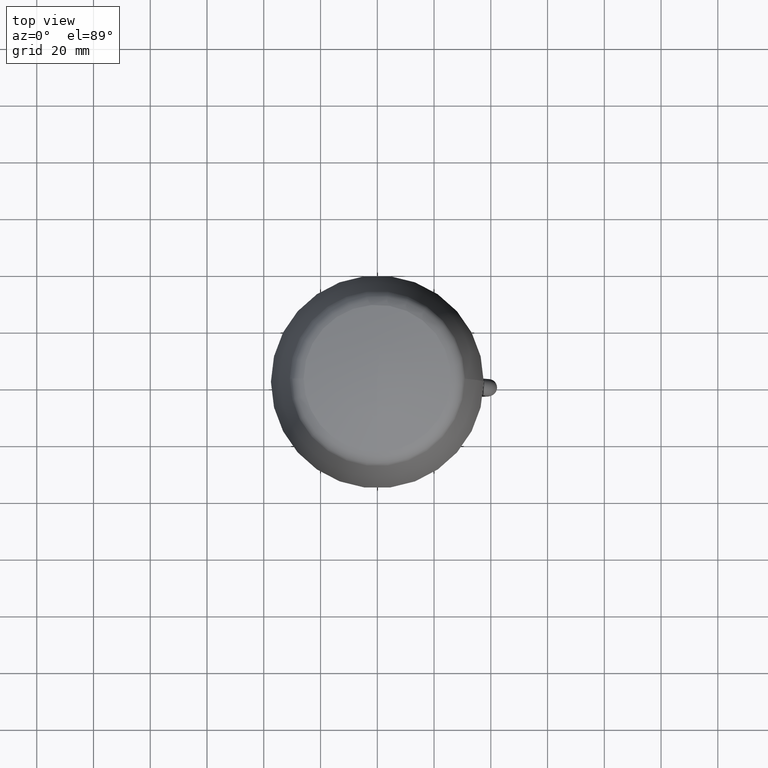
[diagram: clean part render]
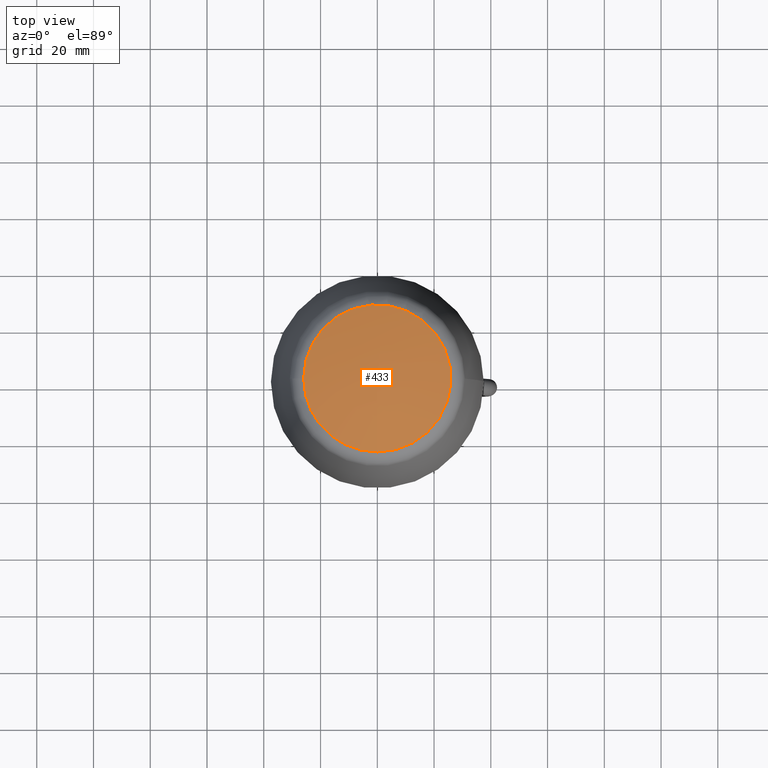
[diagram: same view with one face highlighted and labeled with its STEP entity id]
A machine part, top view. The second image highlights one B-rep face of the part: STEP entity #433.
In plain terms, the highlighted spherical surface has radius 92.5 mm.
Its self-contained STEP definition (entity closure, byte-faithful):
#29=SPHERICAL_SURFACE('',#2928,92.5);
#229=FACE_OUTER_BOUND('',#1233,.T.);
#433=ADVANCED_FACE('',(#229),#29,.T.);
#1233=EDGE_LOOP('',(#1619));
#1619=ORIENTED_EDGE('',*,*,#2467,.T.);
#2189=VERTEX_POINT('',#4291);
#2467=EDGE_CURVE('',#2189,#2189,#2748,.T.);
#2748=CIRCLE('',#2927,25.9386526855949);
#2927=AXIS2_PLACEMENT_3D('',#4290,#3364,#3365);
#2928=AXIS2_PLACEMENT_3D('',#4292,#3366,#3367);
#3364=DIRECTION('',(0.,0.,1.));
#3365=DIRECTION('',(-1.,0.,0.));
#3366=DIRECTION('',(0.,-1.22464679914735E-016,1.));
#3367=DIRECTION('',(0.,-1.,-6.09497437505365E-017));
#4290=CARTESIAN_POINT('',(3.66373598126302E-015,0.,90.241009205393));
#4291=CARTESIAN_POINT('',(-25.9386526855949,0.,90.241009205393));
#4292=CARTESIAN_POINT('',(3.66373598126302E-015,0.,1.45229203448166));